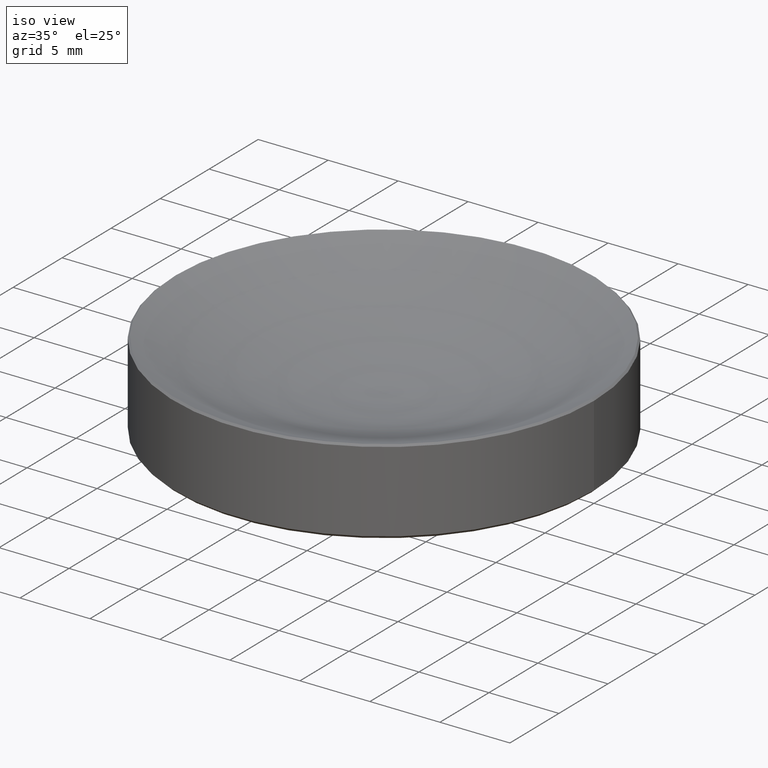
[diagram: clean part render]
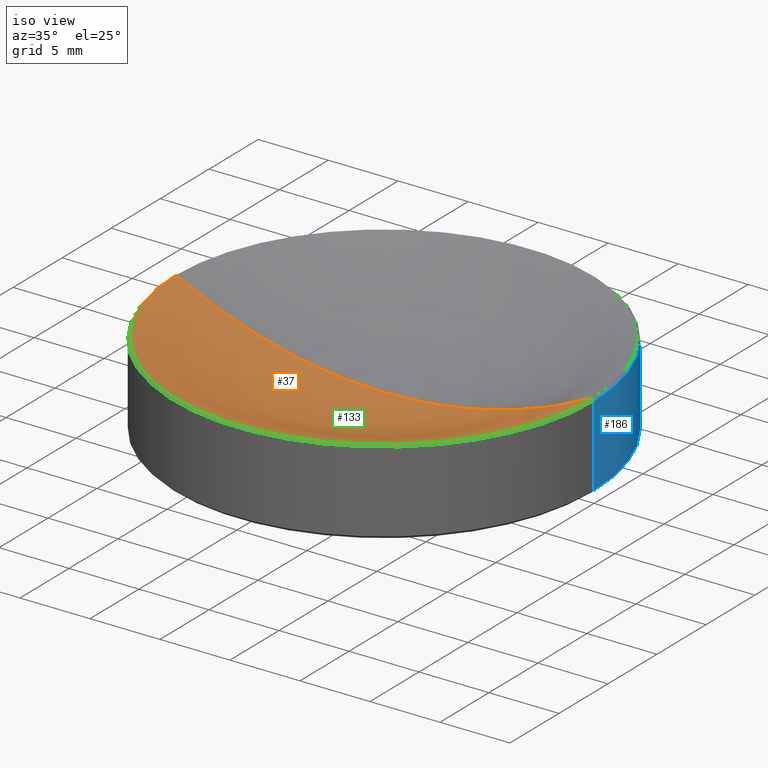
[diagram: same view with three faces highlighted in distinct colors, each labeled with its STEP entity id]
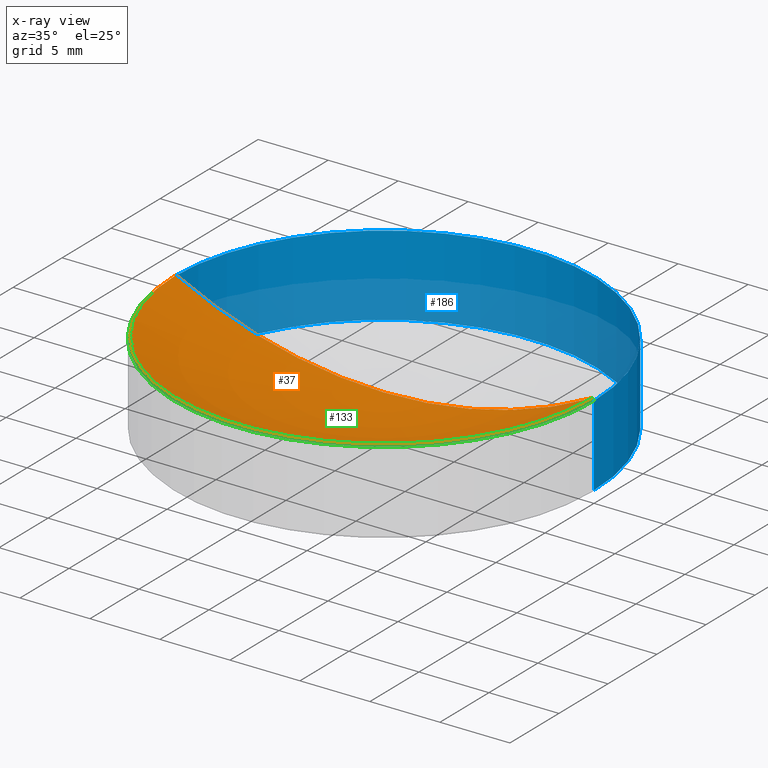
[diagram: x-ray of the same camera — body ghosted, the three highlighted faces saturated]
A machine part, iso view with three faces highlighted in distinct colors.
The next image is the same camera in x-ray (body ghosted, the three faces saturated) — at least one of them is partly hidden behind the body in this view.
Their STEP definitions:

[orange] entity #37 — the highlighted toroidal blend (fillet) surface has major radius 0.0027 mm and minor (blend) radius 32.5 mm.
#3 = DIRECTION ( 'NONE',  ( -1.000000000000000000, 1.224646799147353454E-16, 0.000000000000000000 ) ) ;
#4 = CARTESIAN_POINT ( 'NONE',  ( 0.000000000000000000, 0.000000000000000000, 34.99999988757134872 ) ) ;
#37 = ADVANCED_FACE ( 'NONE', ( #51 ), #104, .F. ) ;
#46 = DIRECTION ( 'NONE',  ( -0.000000000000000000, -0.000000000000000000, 1.000000000000000000 ) ) ;
#47 = DIRECTION ( 'NONE',  ( 1.000000000000000000, 0.000000000000000000, 0.000000000000000000 ) ) ;
#51 = FACE_OUTER_BOUND ( 'NONE', #266, .T. ) ;
#55 = CARTESIAN_POINT ( 'NONE',  ( -0.002703305825795844497, 0.000000000000000000, 34.99999988757134872 ) ) ;
#66 = ORIENTED_EDGE ( 'NONE', *, *, #81, .T. ) ;
#67 = AXIS2_PLACEMENT_3D ( 'NONE', #4, #89, #47 ) ;
#71 = DIRECTION ( 'NONE',  ( 0.000000000000000000, 0.000000000000000000, -1.000000000000000000 ) ) ;
#76 = CIRCLE ( 'NONE', #254, 14.86820317720389895 ) ;
#81 = EDGE_CURVE ( 'NONE', #84, #143, #76, .T. ) ;
#84 = VERTEX_POINT ( 'NONE', #211 ) ;
#89 = DIRECTION ( 'NONE',  ( -0.000000000000000000, -0.000000000000000000, 1.000000000000000000 ) ) ;
#102 = EDGE_CURVE ( 'NONE', #118, #84, #193, .T. ) ;
#104 = TOROIDAL_SURFACE ( 'NONE', #67, -0.002703305825795844497, 32.50000000000000000 ) ;
#118 = VERTEX_POINT ( 'NONE', #210 ) ;
#129 = CARTESIAN_POINT ( 'NONE',  ( 14.86820317720390072, 0.000000000000000000, 6.101796822796101694 ) ) ;
#142 = ORIENTED_EDGE ( 'NONE', *, *, #196, .F. ) ;
#143 = VERTEX_POINT ( 'NONE', #129 ) ;
#171 = CARTESIAN_POINT ( 'NONE',  ( 0.000000000000000000, 0.000000000000000000, 6.101796822796101694 ) ) ;
#175 = DIRECTION ( 'NONE',  ( 1.224646799147353207E-16, 1.000000000000000000, 0.000000000000000000 ) ) ;
#185 = ORIENTED_EDGE ( 'NONE', *, *, #102, .T. ) ;
#193 = CIRCLE ( 'NONE', #204, 32.50000000000000000 ) ;
#196 = EDGE_CURVE ( 'NONE', #118, #143, #224, .T. ) ;
#204 = AXIS2_PLACEMENT_3D ( 'NONE', #230, #175, #3 ) ;
#210 = CARTESIAN_POINT ( 'NONE',  ( 0.000000000000000000, 0.000000000000000000, 2.500000000000000000 ) ) ;
#211 = CARTESIAN_POINT ( 'NONE',  ( -14.86820317720390072, 1.820829743003526459E-15, 6.101796822796101694 ) ) ;
#213 = DIRECTION ( 'NONE',  ( 1.000000000000000000, 0.000000000000000000, 0.000000000000000000 ) ) ;
#224 = CIRCLE ( 'NONE', #260, 32.50000000000000000 ) ;
#230 = CARTESIAN_POINT ( 'NONE',  ( 0.002703305825795844497, -3.310594826677273624E-19, 34.99999988757134872 ) ) ;
#254 = AXIS2_PLACEMENT_3D ( 'NONE', #171, #46, #213 ) ;
#255 = DIRECTION ( 'NONE',  ( 0.000000000000000000, -1.000000000000000000, 0.000000000000000000 ) ) ;
#260 = AXIS2_PLACEMENT_3D ( 'NONE', #55, #255, #71 ) ;
#266 = EDGE_LOOP ( 'NONE', ( #142, #185, #66 ) ) ;

[blue] entity #186 — the highlighted cylindrical surface (partial cylindrical patch) has radius 15 mm, axis along (-0, -0, 1).
#2 = ORIENTED_EDGE ( 'NONE', *, *, #90, .T. ) ;
#6 = VECTOR ( 'NONE', #93, 1000.000000000000000 ) ;
#7 = FACE_OUTER_BOUND ( 'NONE', #181, .T. ) ;
#19 = ORIENTED_EDGE ( 'NONE', *, *, #178, .F. ) ;
#20 = CARTESIAN_POINT ( 'NONE',  ( -15.00000000000000000, 1.836970198721029589E-15, 0.2000000000000118072 ) ) ;
#23 = AXIS2_PLACEMENT_3D ( 'NONE', #253, #147, #229 ) ;
#33 = CARTESIAN_POINT ( 'NONE',  ( 15.00000000000000000, 0.000000000000000000, 2.500000000000000000 ) ) ;
#42 = ORIENTED_EDGE ( 'NONE', *, *, #65, .T. ) ;
#44 = EDGE_CURVE ( 'NONE', #223, #225, #59, .T. ) ;
#59 = CIRCLE ( 'NONE', #160, 15.00000000000000000 ) ;
#65 = EDGE_CURVE ( 'NONE', #225, #80, #86, .T. ) ;
#68 = CARTESIAN_POINT ( 'NONE',  ( 0.000000000000000000, 0.000000000000000000, 0.2000000000000118072 ) ) ;
#69 = CARTESIAN_POINT ( 'NONE',  ( -15.00000000000000000, 1.836970198721029589E-15, 5.969999999999999751 ) ) ;
#70 = VECTOR ( 'NONE', #188, 1000.000000000000000 ) ;
#74 = DIRECTION ( 'NONE',  ( 1.000000000000000000, 0.000000000000000000, 0.000000000000000000 ) ) ;
#80 = VERTEX_POINT ( 'NONE', #69 ) ;
#82 = VERTEX_POINT ( 'NONE', #251 ) ;
#86 = LINE ( 'NONE', #250, #70 ) ;
#87 = DIRECTION ( 'NONE',  ( 1.000000000000000000, 0.000000000000000000, 0.000000000000000000 ) ) ;
#90 = EDGE_CURVE ( 'NONE', #80, #82, #134, .T. ) ;
#93 = DIRECTION ( 'NONE',  ( -0.000000000000000000, -0.000000000000000000, 1.000000000000000000 ) ) ;
#110 = AXIS2_PLACEMENT_3D ( 'NONE', #215, #153, #74 ) ;
#131 = CARTESIAN_POINT ( 'NONE',  ( 15.00000000000000000, 0.000000000000000000, 0.2000000000000118072 ) ) ;
#134 = CIRCLE ( 'NONE', #23, 15.00000000000000000 ) ;
#136 = ORIENTED_EDGE ( 'NONE', *, *, #44, .T. ) ;
#147 = DIRECTION ( 'NONE',  ( 0.000000000000000000, 0.000000000000000000, -1.000000000000000000 ) ) ;
#152 = LINE ( 'NONE', #33, #6 ) ;
#153 = DIRECTION ( 'NONE',  ( -0.000000000000000000, -0.000000000000000000, 1.000000000000000000 ) ) ;
#160 = AXIS2_PLACEMENT_3D ( 'NONE', #68, #227, #87 ) ;
#176 = CYLINDRICAL_SURFACE ( 'NONE', #110, 15.00000000000000000 ) ;
#178 = EDGE_CURVE ( 'NONE', #223, #82, #152, .T. ) ;
#181 = EDGE_LOOP ( 'NONE', ( #136, #42, #2, #19 ) ) ;
#186 = ADVANCED_FACE ( 'NONE', ( #7 ), #176, .T. ) ;
#188 = DIRECTION ( 'NONE',  ( -0.000000000000000000, -0.000000000000000000, 1.000000000000000000 ) ) ;
#215 = CARTESIAN_POINT ( 'NONE',  ( 0.000000000000000000, 0.000000000000000000, 2.500000000000000000 ) ) ;
#223 = VERTEX_POINT ( 'NONE', #131 ) ;
#225 = VERTEX_POINT ( 'NONE', #20 ) ;
#227 = DIRECTION ( 'NONE',  ( -0.000000000000000000, -0.000000000000000000, 1.000000000000000000 ) ) ;
#229 = DIRECTION ( 'NONE',  ( -1.000000000000000000, 0.000000000000000000, 0.000000000000000000 ) ) ;
#250 = CARTESIAN_POINT ( 'NONE',  ( -15.00000000000000000, 1.836970198721029589E-15, 2.500000000000000000 ) ) ;
#251 = CARTESIAN_POINT ( 'NONE',  ( 15.00000000000000000, 0.000000000000000000, 5.969999999999999751 ) ) ;
#253 = CARTESIAN_POINT ( 'NONE',  ( 0.000000000000000000, 0.000000000000000000, 5.969999999999999751 ) ) ;

[green] entity #133 — the highlighted conical surface has half-angle 45 deg.
#22 = ORIENTED_EDGE ( 'NONE', *, *, #205, .F. ) ;
#31 = CARTESIAN_POINT ( 'NONE',  ( 0.000000000000000000, 0.000000000000000000, 6.101796822796098141 ) ) ;
#34 = CARTESIAN_POINT ( 'NONE',  ( -14.86820317720389895, 0.000000000000000000, 6.101796822796098141 ) ) ;
#46 = DIRECTION ( 'NONE',  ( -0.000000000000000000, -0.000000000000000000, 1.000000000000000000 ) ) ;
#48 = EDGE_CURVE ( 'NONE', #82, #80, #214, .T. ) ;
#54 = LINE ( 'NONE', #34, #166 ) ;
#69 = CARTESIAN_POINT ( 'NONE',  ( -15.00000000000000000, 1.836970198721029589E-15, 5.969999999999999751 ) ) ;
#72 = DIRECTION ( 'NONE',  ( 0.7071067811865522357, 8.659560562354992023E-17, -0.7071067811865429098 ) ) ;
#76 = CIRCLE ( 'NONE', #254, 14.86820317720389895 ) ;
#80 = VERTEX_POINT ( 'NONE', #69 ) ;
#81 = EDGE_CURVE ( 'NONE', #84, #143, #76, .T. ) ;
#82 = VERTEX_POINT ( 'NONE', #251 ) ;
#84 = VERTEX_POINT ( 'NONE', #211 ) ;
#85 = DIRECTION ( 'NONE',  ( 0.000000000000000000, 0.000000000000000000, -1.000000000000000000 ) ) ;
#95 = CONICAL_SURFACE ( 'NONE', #156, 14.86820317720389895, 0.7853981633974549403 ) ;
#97 = ORIENTED_EDGE ( 'NONE', *, *, #81, .F. ) ;
#113 = DIRECTION ( 'NONE',  ( 0.000000000000000000, 0.000000000000000000, -1.000000000000000000 ) ) ;
#119 = ORIENTED_EDGE ( 'NONE', *, *, #158, .T. ) ;
#129 = CARTESIAN_POINT ( 'NONE',  ( 14.86820317720390072, 0.000000000000000000, 6.101796822796101694 ) ) ;
#133 = ADVANCED_FACE ( 'NONE', ( #177 ), #95, .T. ) ;
#143 = VERTEX_POINT ( 'NONE', #129 ) ;
#144 = VECTOR ( 'NONE', #72, 1000.000000000000000 ) ;
#156 = AXIS2_PLACEMENT_3D ( 'NONE', #31, #113, #234 ) ;
#158 = EDGE_CURVE ( 'NONE', #84, #80, #54, .T. ) ;
#166 = VECTOR ( 'NONE', #257, 1000.000000000000000 ) ;
#171 = CARTESIAN_POINT ( 'NONE',  ( 0.000000000000000000, 0.000000000000000000, 6.101796822796101694 ) ) ;
#172 = CARTESIAN_POINT ( 'NONE',  ( 0.000000000000000000, 0.000000000000000000, 5.969999999999999751 ) ) ;
#173 = DIRECTION ( 'NONE',  ( -1.000000000000000000, 0.000000000000000000, 0.000000000000000000 ) ) ;
#177 = FACE_OUTER_BOUND ( 'NONE', #244, .T. ) ;
#205 = EDGE_CURVE ( 'NONE', #143, #82, #232, .T. ) ;
#208 = AXIS2_PLACEMENT_3D ( 'NONE', #172, #85, #173 ) ;
#211 = CARTESIAN_POINT ( 'NONE',  ( -14.86820317720390072, 1.820829743003526459E-15, 6.101796822796101694 ) ) ;
#213 = DIRECTION ( 'NONE',  ( 1.000000000000000000, 0.000000000000000000, 0.000000000000000000 ) ) ;
#214 = CIRCLE ( 'NONE', #208, 15.00000000000000000 ) ;
#220 = ORIENTED_EDGE ( 'NONE', *, *, #48, .F. ) ;
#232 = LINE ( 'NONE', #256, #144 ) ;
#234 = DIRECTION ( 'NONE',  ( -1.000000000000000000, 0.000000000000000000, 0.000000000000000000 ) ) ;
#244 = EDGE_LOOP ( 'NONE', ( #22, #97, #119, #220 ) ) ;
#251 = CARTESIAN_POINT ( 'NONE',  ( 15.00000000000000000, 0.000000000000000000, 5.969999999999999751 ) ) ;
#254 = AXIS2_PLACEMENT_3D ( 'NONE', #171, #46, #213 ) ;
#256 = CARTESIAN_POINT ( 'NONE',  ( 14.86820317720389895, 1.820829743003526064E-15, 6.101796822796098141 ) ) ;
#257 = DIRECTION ( 'NONE',  ( -0.7071067811865522357, 0.000000000000000000, -0.7071067811865429098 ) ) ;